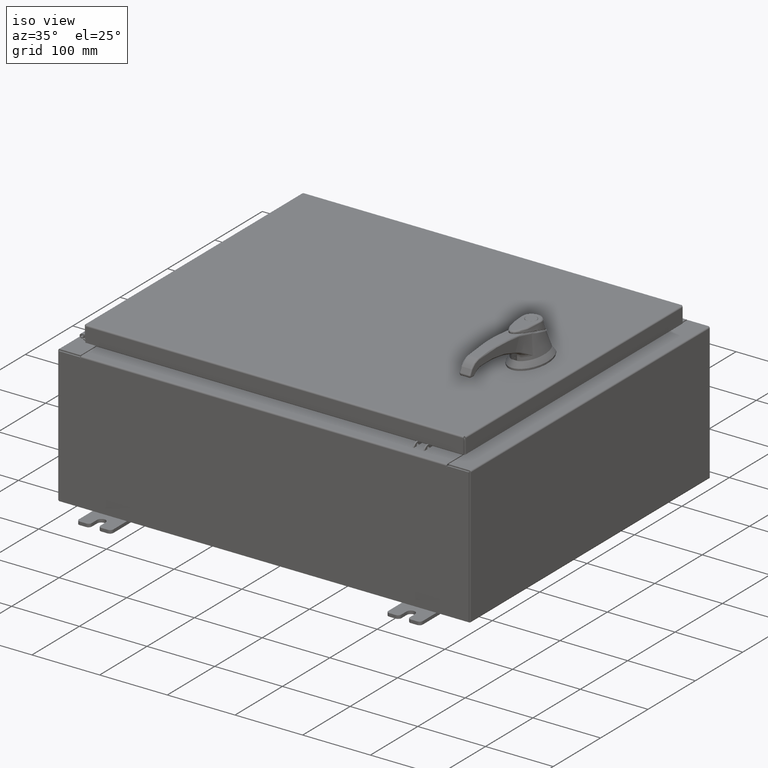
[diagram: clean part render]
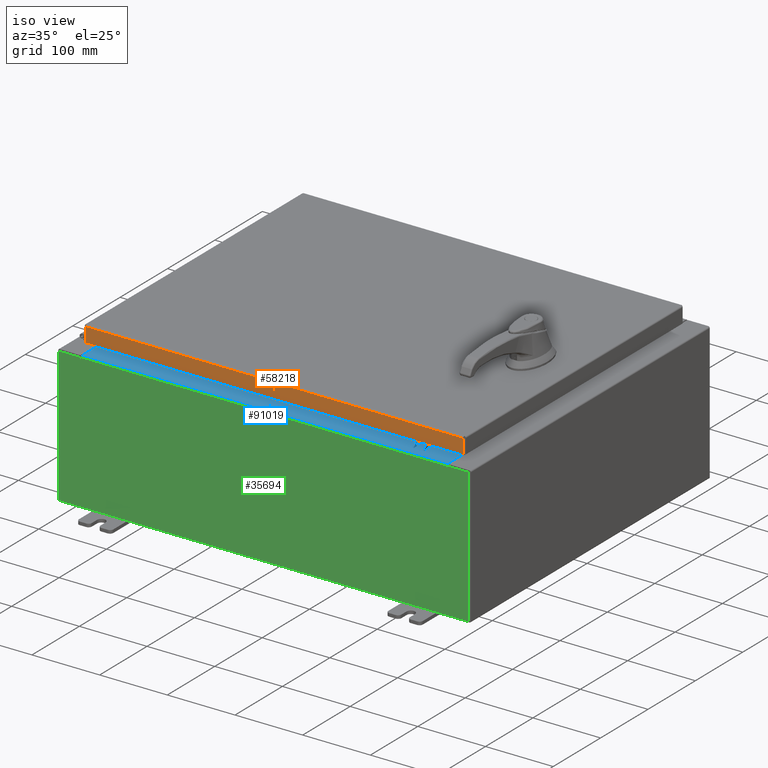
[diagram: same view with three faces highlighted in distinct colors, each labeled with its STEP entity id]
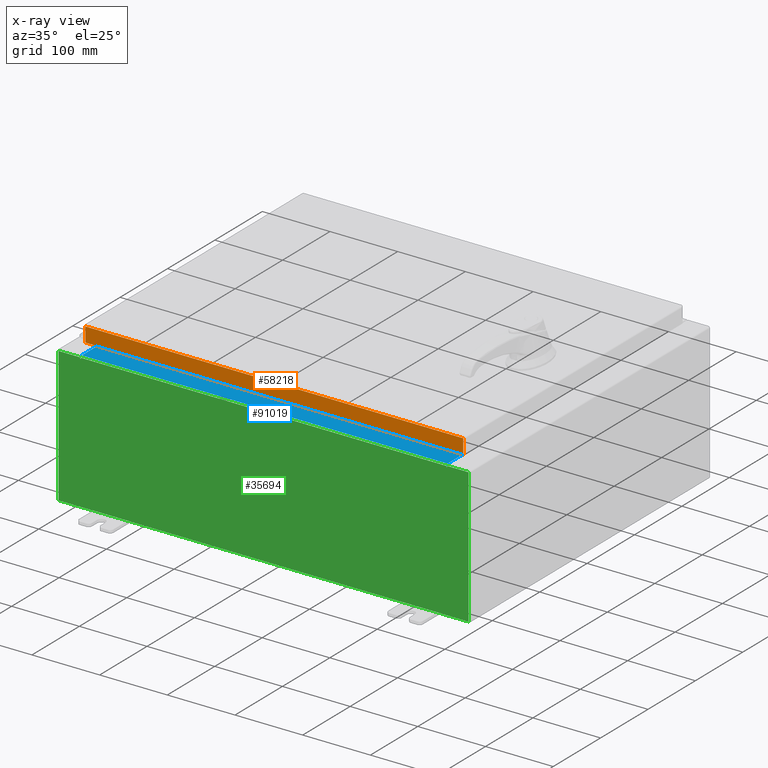
[diagram: x-ray of the same camera — body ghosted, the three highlighted faces saturated]
A machine part, iso view with three faces highlighted in distinct colors.
The next image is the same camera in x-ray (body ghosted, the three faces saturated) — at least one of them is partly hidden behind the body in this view.
Their STEP definitions:

[orange] entity #58218 — the highlighted planar face has unit normal (-0, 1, -0).
#4783 = LINE ( 'NONE', #90628, #69452 ) ;
#15017 = ORIENTED_EDGE ( 'NONE', *, *, #102171, .F. ) ;
#16980 = ORIENTED_EDGE ( 'NONE', *, *, #32841, .F. ) ;
#19519 = CARTESIAN_POINT ( 'NONE',  ( 10.98915786437626900, -9.094000000000003000, -0.9376999999999997600 ) ) ;
#19914 = ORIENTED_EDGE ( 'NONE', *, *, #107474, .T. ) ;
#23038 = VERTEX_POINT ( 'NONE', #19519 ) ;
#31409 = DIRECTION ( 'NONE',  ( 0.0000000000000000000, -3.798629886902798700E-015, -1.000000000000000000 ) ) ;
#32841 = EDGE_CURVE ( 'NONE', #62699, #56566, #56812, .T. ) ;
#35229 = EDGE_CURVE ( 'NONE', #56566, #23038, #79184, .T. ) ;
#37583 = PLANE ( 'NONE',  #93748 ) ;
#37938 = CARTESIAN_POINT ( 'NONE',  ( 4.259387036639567100E-030, -9.093999999999999400, 3.480555384750563700E-014 ) ) ;
#38648 = CARTESIAN_POINT ( 'NONE',  ( -10.98915786437626700, -9.093999999999999400, -0.08769999999999997200 ) ) ;
#40978 = DIRECTION ( 'NONE',  ( -1.000000000000000000, 8.758115402030108600E-047, 1.233005954894504400E-016 ) ) ;
#46093 = DIRECTION ( 'NONE',  ( -0.0000000000000000000, -3.798629886902798700E-015, -1.000000000000000000 ) ) ;
#46388 = DIRECTION ( 'NONE',  ( 0.0000000000000000000, 3.798629886902798700E-015, 1.000000000000000000 ) ) ;
#47521 = FACE_OUTER_BOUND ( 'NONE', #90358, .T. ) ;
#54855 = CARTESIAN_POINT ( 'NONE',  ( 10.98915786437626900, -9.093999999999999400, -0.07469999999999972500 ) ) ;
#56566 = VERTEX_POINT ( 'NONE', #108728 ) ;
#56812 = LINE ( 'NONE', #75284, #76616 ) ;
#58218 = ADVANCED_FACE ( 'NONE', ( #47521 ), #37583, .F. ) ;
#60960 = ORIENTED_EDGE ( 'NONE', *, *, #35229, .F. ) ;
#62699 = VERTEX_POINT ( 'NONE', #38648 ) ;
#66200 = VERTEX_POINT ( 'NONE', #75221 ) ;
#69452 = VECTOR ( 'NONE', #31409, 39.37007874015748100 ) ;
#69473 = VECTOR ( 'NONE', #40978, 39.37007874015748100 ) ;
#75221 = CARTESIAN_POINT ( 'NONE',  ( -10.98915786437626700, -9.094000000000003000, -0.9376999999999970900 ) ) ;
#75284 = CARTESIAN_POINT ( 'NONE',  ( 11.07799999999999900, -9.093999999999999400, -0.08769999999999997200 ) ) ;
#76616 = VECTOR ( 'NONE', #108857, 39.37007874015748100 ) ;
#79184 = LINE ( 'NONE', #54855, #101590 ) ;
#90358 = EDGE_LOOP ( 'NONE', ( #16980, #19914, #15017, #60960 ) ) ;
#90628 = CARTESIAN_POINT ( 'NONE',  ( -10.98915786437626900, -9.093999999999999400, 3.480555384750563700E-014 ) ) ;
#91362 = CARTESIAN_POINT ( 'NONE',  ( 11.07799999999999900, -9.094000000000003000, -0.9376999999999997600 ) ) ;
#91766 = LINE ( 'NONE', #91362, #69473 ) ;
#93748 = AXIS2_PLACEMENT_3D ( 'NONE', #37938, #96814, #46388 ) ;
#96814 = DIRECTION ( 'NONE',  ( -4.683733270991387600E-031, 1.000000000000000000, -3.798629886902798700E-015 ) ) ;
#101590 = VECTOR ( 'NONE', #46093, 39.37007874015748100 ) ;
#102171 = EDGE_CURVE ( 'NONE', #23038, #66200, #91766, .T. ) ;
#107474 = EDGE_CURVE ( 'NONE', #62699, #66200, #4783, .T. ) ;
#108728 = CARTESIAN_POINT ( 'NONE',  ( 10.98915786437626700, -9.093999999999999400, -0.08769999999999997200 ) ) ;
#108857 = DIRECTION ( 'NONE',  ( 1.000000000000000000, 4.683733270991387600E-031, -1.796675691135460100E-045 ) ) ;

[blue] entity #91019 — the highlighted planar face has unit normal (-0, -0, 1).
#966 = LINE ( 'NONE', #36337, #90560 ) ;
#2723 = VECTOR ( 'NONE', #78836, 39.37007874015748100 ) ;
#6672 = FACE_OUTER_BOUND ( 'NONE', #16524, .T. ) ;
#8205 = EDGE_CURVE ( 'NONE', #35403, #19181, #25153, .T. ) ;
#11100 = CARTESIAN_POINT ( 'NONE',  ( 0.0000000000000000000, 1.425992975200418500E-014, 4.000000000000000000 ) ) ;
#11277 = LINE ( 'NONE', #84233, #67899 ) ;
#13185 = EDGE_CURVE ( 'NONE', #53104, #35403, #966, .T. ) ;
#16524 = EDGE_LOOP ( 'NONE', ( #44607, #97530, #98000, #31916 ) ) ;
#19181 = VERTEX_POINT ( 'NONE', #45695 ) ;
#19590 = DIRECTION ( 'NONE',  ( 0.0000000000000000000, -1.000000000000000000, 3.566381192773190000E-015 ) ) ;
#22506 = CARTESIAN_POINT ( 'NONE',  ( -10.63720000000000200, -0.08770000000000000000, 4.000000000000000000 ) ) ;
#25153 = LINE ( 'NONE', #53417, #2723 ) ;
#26140 = CARTESIAN_POINT ( 'NONE',  ( 10.63720000000000200, -1.287299999999999900, 4.000000000000004400 ) ) ;
#31127 = VECTOR ( 'NONE', #47011, 39.37007874015748100 ) ;
#31916 = ORIENTED_EDGE ( 'NONE', *, *, #85951, .T. ) ;
#35403 = VERTEX_POINT ( 'NONE', #26140 ) ;
#36337 = CARTESIAN_POINT ( 'NONE',  ( 10.63720000000000200, -1.300299999999999800, 4.000000000000004400 ) ) ;
#44607 = ORIENTED_EDGE ( 'NONE', *, *, #84841, .F. ) ;
#44803 = DIRECTION ( 'NONE',  ( -0.0000000000000000000, -1.000000000000000000, 3.566381192773190000E-015 ) ) ;
#45695 = CARTESIAN_POINT ( 'NONE',  ( -10.63720000000000200, -1.287299999999999200, 4.000000000000004400 ) ) ;
#47011 = DIRECTION ( 'NONE',  ( -0.0000000000000000000, 1.000000000000000000, -3.566381192773190000E-015 ) ) ;
#53082 = PLANE ( 'NONE',  #80146 ) ;
#53104 = VERTEX_POINT ( 'NONE', #57468 ) ;
#53417 = CARTESIAN_POINT ( 'NONE',  ( 10.63720000000000400, -1.287299999999999900, 4.000000000000003600 ) ) ;
#57468 = CARTESIAN_POINT ( 'NONE',  ( 10.63720000000000400, -0.08769999999999965300, 4.000000000000000000 ) ) ;
#67899 = VECTOR ( 'NONE', #92683, 39.37007874015748100 ) ;
#70060 = DIRECTION ( 'NONE',  ( 0.0000000000000000000, 3.566381192773190000E-015, 1.000000000000000000 ) ) ;
#78836 = DIRECTION ( 'NONE',  ( -1.000000000000000000, 0.0000000000000000000, 0.0000000000000000000 ) ) ;
#80146 = AXIS2_PLACEMENT_3D ( 'NONE', #11100, #70060, #19590 ) ;
#84233 = CARTESIAN_POINT ( 'NONE',  ( -2.252313287748606700E-018, -0.08770000000000000000, 4.000000000000000900 ) ) ;
#84841 = EDGE_CURVE ( 'NONE', #19181, #97486, #95708, .T. ) ;
#85951 = EDGE_CURVE ( 'NONE', #53104, #97486, #11277, .T. ) ;
#90560 = VECTOR ( 'NONE', #44803, 39.37007874015748100 ) ;
#91019 = ADVANCED_FACE ( 'NONE', ( #6672 ), #53082, .T. ) ;
#92683 = DIRECTION ( 'NONE',  ( -1.000000000000000000, 2.568202152506545800E-017, -9.159187855938968600E-032 ) ) ;
#95708 = LINE ( 'NONE', #97448, #31127 ) ;
#97448 = CARTESIAN_POINT ( 'NONE',  ( -10.63720000000000200, -0.07469999999999973900, 4.000000000000000000 ) ) ;
#97486 = VERTEX_POINT ( 'NONE', #22506 ) ;
#97530 = ORIENTED_EDGE ( 'NONE', *, *, #8205, .F. ) ;
#98000 = ORIENTED_EDGE ( 'NONE', *, *, #13185, .F. ) ;

[green] entity #35694 — the highlighted planar face has unit normal (-0, 1, -0).
#2133 = VECTOR ( 'NONE', #101980, 39.37007874015748100 ) ;
#2582 = CARTESIAN_POINT ( 'NONE',  ( -11.92530000000000000, 0.0000000000000000000, -3.925299999999999600 ) ) ;
#3388 = CARTESIAN_POINT ( 'NONE',  ( 10.67454999999983300, -0.0000000000000000000, -4.633366117301815000E-013 ) ) ;
#4224 = LINE ( 'NONE', #3388, #88544 ) ;
#5621 = LINE ( 'NONE', #108061, #92601 ) ;
#6600 = DIRECTION ( 'NONE',  ( 0.0000000000000000000, 0.0000000000000000000, -1.000000000000000000 ) ) ;
#6796 = DIRECTION ( 'NONE',  ( 0.0000000000000000000, -0.0000000000000000000, -1.000000000000000000 ) ) ;
#6885 = VECTOR ( 'NONE', #107891, 39.37007874015748100 ) ;
#6954 = CARTESIAN_POINT ( 'NONE',  ( -11.92530000000000000, 0.0000000000000000000, 3.925299999999999600 ) ) ;
#8134 = VECTOR ( 'NONE', #18494, 39.37007874015748100 ) ;
#8559 = CARTESIAN_POINT ( 'NONE',  ( 10.63720000000000400, 0.0000000000000000000, 3.912299999999999700 ) ) ;
#11095 = DIRECTION ( 'NONE',  ( -1.000000000000000000, -0.0000000000000000000, -0.0000000000000000000 ) ) ;
#12181 = CARTESIAN_POINT ( 'NONE',  ( -11.92530000000000000, 0.0000000000000000000, 3.925299999999999600 ) ) ;
#12254 = EDGE_CURVE ( 'NONE', #24995, #91148, #63105, .T. ) ;
#12311 = CARTESIAN_POINT ( 'NONE',  ( -11.92530000000000000, 0.0000000000000000000, 3.925299999999999600 ) ) ;
#12354 = ORIENTED_EDGE ( 'NONE', *, *, #88826, .T. ) ;
#13722 = VERTEX_POINT ( 'NONE', #109466 ) ;
#14645 = AXIS2_PLACEMENT_3D ( 'NONE', #16904, #75825, #25419 ) ;
#15004 = CARTESIAN_POINT ( 'NONE',  ( -10.67455000000000200, 0.0000000000000000000, 3.874949999999999700 ) ) ;
#16904 = CARTESIAN_POINT ( 'NONE',  ( -10.65587500000000200, 0.0000000000000000000, 3.874949999999999700 ) ) ;
#18494 = DIRECTION ( 'NONE',  ( 0.0000000000000000000, 0.0000000000000000000, -1.000000000000000000 ) ) ;
#19850 = VERTEX_POINT ( 'NONE', #78703 ) ;
#21174 = VECTOR ( 'NONE', #88107, 39.37007874015748100 ) ;
#22178 = LINE ( 'NONE', #80147, #84075 ) ;
#24479 = VERTEX_POINT ( 'NONE', #15004 ) ;
#24642 = LINE ( 'NONE', #103181, #27367 ) ;
#24995 = VERTEX_POINT ( 'NONE', #63940 ) ;
#25419 = DIRECTION ( 'NONE',  ( 0.0000000000000000000, 0.0000000000000000000, -1.000000000000000000 ) ) ;
#25703 = EDGE_CURVE ( 'NONE', #91148, #94622, #22178, .T. ) ;
#27367 = VECTOR ( 'NONE', #44224, 39.37007874015748100 ) ;
#30799 = VERTEX_POINT ( 'NONE', #99266 ) ;
#31815 = DIRECTION ( 'NONE',  ( 0.0000000000000000000, 0.0000000000000000000, 1.000000000000000000 ) ) ;
#31921 = CARTESIAN_POINT ( 'NONE',  ( 0.0000000000000000000, 0.0000000000000000000, 0.0000000000000000000 ) ) ;
#34617 = CARTESIAN_POINT ( 'NONE',  ( -10.63720000000000400, -0.0000000000000000000, 0.0000000000000000000 ) ) ;
#35694 = ADVANCED_FACE ( 'NONE', ( #80421 ), #107782, .F. ) ;
#40711 = VECTOR ( 'NONE', #74368, 39.37007874015748100 ) ;
#43781 = CARTESIAN_POINT ( 'NONE',  ( -10.63720000000000400, -0.0000000000000000000, 3.874949999999999700 ) ) ;
#44224 = DIRECTION ( 'NONE',  ( 0.0000000000000000000, 0.0000000000000000000, 1.000000000000000000 ) ) ;
#44877 = CARTESIAN_POINT ( 'NONE',  ( 10.63720000000000400, 0.0000000000000000000, 3.874949999999999700 ) ) ;
#45372 = EDGE_CURVE ( 'NONE', #104312, #13722, #4224, .T. ) ;
#45438 = DIRECTION ( 'NONE',  ( -4.340572780400004900E-014, 0.0000000000000000000, -1.000000000000000000 ) ) ;
#45710 = EDGE_CURVE ( 'NONE', #30799, #87658, #72714, .T. ) ;
#45940 = CIRCLE ( 'NONE', #78611, 0.01867499999999949400 ) ;
#46207 = ORIENTED_EDGE ( 'NONE', *, *, #74397, .F. ) ;
#46244 = LINE ( 'NONE', #12311, #21174 ) ;
#46977 = LINE ( 'NONE', #34617, #2133 ) ;
#47263 = ORIENTED_EDGE ( 'NONE', *, *, #45710, .T. ) ;
#47269 = EDGE_CURVE ( 'NONE', #104312, #30799, #46244, .T. ) ;
#50791 = CARTESIAN_POINT ( 'NONE',  ( 10.67455000000000200, 0.0000000000000000000, 3.925299999999999600 ) ) ;
#51430 = EDGE_CURVE ( 'NONE', #24479, #94622, #24642, .T. ) ;
#53012 = ORIENTED_EDGE ( 'NONE', *, *, #51430, .F. ) ;
#53095 = ORIENTED_EDGE ( 'NONE', *, *, #84557, .F. ) ;
#53403 = CARTESIAN_POINT ( 'NONE',  ( 11.92530000000000000, 0.0000000000000000000, -3.925299999999999600 ) ) ;
#55315 = EDGE_CURVE ( 'NONE', #103252, #93079, #5621, .T. ) ;
#57058 = DIRECTION ( 'NONE',  ( -0.0000000000000000000, 1.000000000000000000, -0.0000000000000000000 ) ) ;
#57259 = DIRECTION ( 'NONE',  ( 0.0000000000000000000, -1.000000000000000000, 0.0000000000000000000 ) ) ;
#61371 = ORIENTED_EDGE ( 'NONE', *, *, #25703, .T. ) ;
#61435 = ORIENTED_EDGE ( 'NONE', *, *, #47269, .T. ) ;
#61544 = EDGE_LOOP ( 'NONE', ( #53012, #46207, #53095, #90477, #98533, #66610, #65668, #61435, #47263, #12354, #105503, #61371 ) ) ;
#63105 = LINE ( 'NONE', #6954, #40711 ) ;
#63940 = CARTESIAN_POINT ( 'NONE',  ( -11.92530000000000000, 0.0000000000000000000, -3.925299999999999600 ) ) ;
#65668 = ORIENTED_EDGE ( 'NONE', *, *, #45372, .F. ) ;
#66610 = ORIENTED_EDGE ( 'NONE', *, *, #82397, .F. ) ;
#71507 = LINE ( 'NONE', #99389, #6885 ) ;
#72714 = LINE ( 'NONE', #77393, #8134 ) ;
#74368 = DIRECTION ( 'NONE',  ( -0.0000000000000000000, -0.0000000000000000000, 1.000000000000000000 ) ) ;
#74397 = EDGE_CURVE ( 'NONE', #103070, #24479, #79688, .T. ) ;
#75825 = DIRECTION ( 'NONE',  ( -0.0000000000000000000, 1.000000000000000000, -0.0000000000000000000 ) ) ;
#77393 = CARTESIAN_POINT ( 'NONE',  ( 11.92530000000000000, 0.0000000000000000000, 3.925299999999999600 ) ) ;
#78611 = AXIS2_PLACEMENT_3D ( 'NONE', #107588, #57058, #6600 ) ;
#78703 = CARTESIAN_POINT ( 'NONE',  ( -10.63720000000000400, 1.024442997624098700E-016, 3.912299999999999700 ) ) ;
#79453 = VECTOR ( 'NONE', #11095, 39.37007874015748100 ) ;
#79688 = CIRCLE ( 'NONE', #14645, 0.01867499999999949400 ) ;
#80147 = CARTESIAN_POINT ( 'NONE',  ( -11.92530000000000000, 0.0000000000000000000, 3.925299999999999600 ) ) ;
#80421 = FACE_OUTER_BOUND ( 'NONE', #61544, .T. ) ;
#81583 = DIRECTION ( 'NONE',  ( 1.000000000000000000, 0.0000000000000000000, 0.0000000000000000000 ) ) ;
#82041 = LINE ( 'NONE', #2582, #79453 ) ;
#82397 = EDGE_CURVE ( 'NONE', #13722, #103252, #45940, .T. ) ;
#84075 = VECTOR ( 'NONE', #81583, 39.37007874015748100 ) ;
#84557 = EDGE_CURVE ( 'NONE', #19850, #103070, #46977, .T. ) ;
#87658 = VERTEX_POINT ( 'NONE', #53403 ) ;
#88107 = DIRECTION ( 'NONE',  ( 1.000000000000000000, 0.0000000000000000000, 0.0000000000000000000 ) ) ;
#88544 = VECTOR ( 'NONE', #45438, 39.37007874015748100 ) ;
#88826 = EDGE_CURVE ( 'NONE', #87658, #24995, #82041, .T. ) ;
#89018 = EDGE_CURVE ( 'NONE', #19850, #93079, #71507, .T. ) ;
#90477 = ORIENTED_EDGE ( 'NONE', *, *, #89018, .T. ) ;
#91148 = VERTEX_POINT ( 'NONE', #12181 ) ;
#92601 = VECTOR ( 'NONE', #31815, 39.37007874015748100 ) ;
#93079 = VERTEX_POINT ( 'NONE', #8559 ) ;
#94622 = VERTEX_POINT ( 'NONE', #108961 ) ;
#98533 = ORIENTED_EDGE ( 'NONE', *, *, #55315, .F. ) ;
#99266 = CARTESIAN_POINT ( 'NONE',  ( 11.92530000000000000, 0.0000000000000000000, 3.925299999999999600 ) ) ;
#99389 = CARTESIAN_POINT ( 'NONE',  ( -10.63720000000000400, 1.024442997624098700E-016, 3.912299999999999700 ) ) ;
#101980 = DIRECTION ( 'NONE',  ( 0.0000000000000000000, 0.0000000000000000000, -1.000000000000000000 ) ) ;
#103070 = VERTEX_POINT ( 'NONE', #43781 ) ;
#103181 = CARTESIAN_POINT ( 'NONE',  ( -10.67455000000000200, -0.0000000000000000000, 0.0000000000000000000 ) ) ;
#103188 = AXIS2_PLACEMENT_3D ( 'NONE', #31921, #57259, #6796 ) ;
#103252 = VERTEX_POINT ( 'NONE', #44877 ) ;
#104312 = VERTEX_POINT ( 'NONE', #50791 ) ;
#105503 = ORIENTED_EDGE ( 'NONE', *, *, #12254, .T. ) ;
#107588 = CARTESIAN_POINT ( 'NONE',  ( 10.65587500000000200, 0.0000000000000000000, 3.874949999999999700 ) ) ;
#107782 = PLANE ( 'NONE',  #103188 ) ;
#107891 = DIRECTION ( 'NONE',  ( 1.000000000000000000, 0.0000000000000000000, 0.0000000000000000000 ) ) ;
#108061 = CARTESIAN_POINT ( 'NONE',  ( 10.63720000000000400, 0.0000000000000000000, 0.0000000000000000000 ) ) ;
#108961 = CARTESIAN_POINT ( 'NONE',  ( -10.67455000000000200, 0.0000000000000000000, 3.925299999999999600 ) ) ;
#109466 = CARTESIAN_POINT ( 'NONE',  ( 10.67455000000000200, 0.0000000000000000000, 3.874949999999999700 ) ) ;